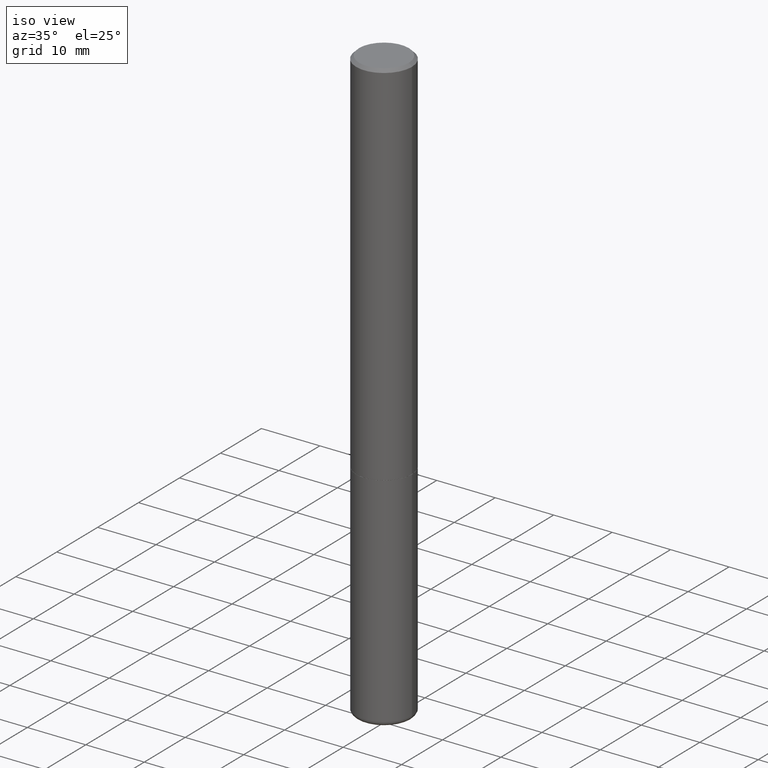
[diagram: clean part render]
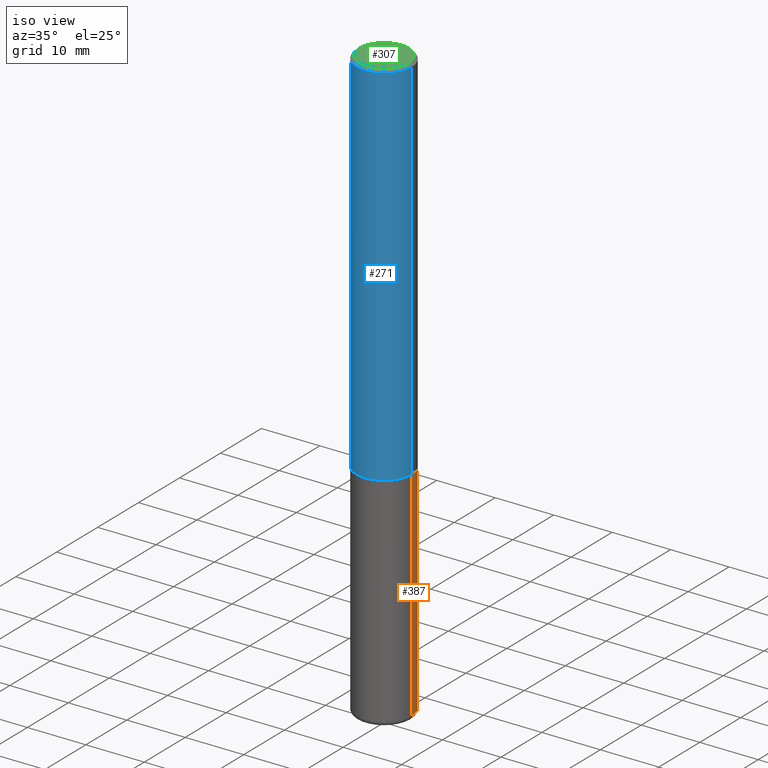
[diagram: same view with three faces highlighted in distinct colors, each labeled with its STEP entity id]
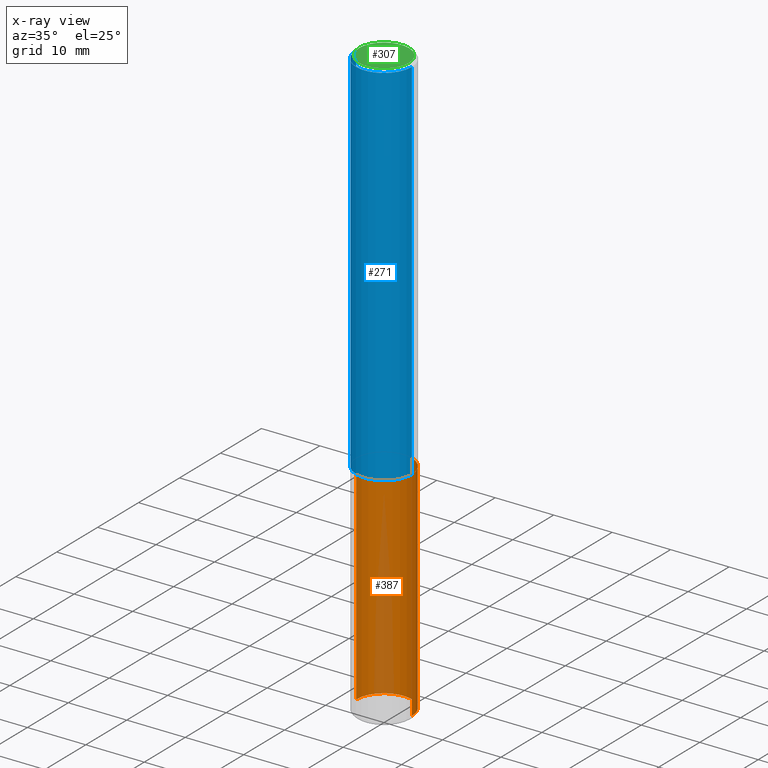
[diagram: x-ray of the same camera — body ghosted, the three highlighted faces saturated]
A machine part, iso view with three faces highlighted in distinct colors.
The next image is the same camera in x-ray (body ghosted, the three faces saturated) — at least one of them is partly hidden behind the body in this view.
Their STEP definitions:

[orange] entity #387 — the highlighted cylindrical surface (edge-blend (fillet) strip) has radius 4.7625 mm, axis along (-0, 0, 1).
#6 = VERTEX_POINT ( 'NONE', #159 ) ;
#20 = VERTEX_POINT ( 'NONE', #261 ) ;
#41 = EDGE_LOOP ( 'NONE', ( #200, #252, #328, #71 ) ) ;
#48 = CARTESIAN_POINT ( 'NONE',  ( -0.1875000000000000278, -9.962674501607386737E-15, -2.500000000000000000 ) ) ;
#52 = DIRECTION ( 'NONE',  ( -2.445468806185136597E-29, 3.491481338843145583E-15, 1.000000000000000000 ) ) ;
#53 = CIRCLE ( 'NONE', #382, 0.1875000000000000278 ) ;
#54 = CARTESIAN_POINT ( 'NONE',  ( 6.113672015462842613E-29, -8.728703347107864943E-15, -2.500000000000000000 ) ) ;
#71 = ORIENTED_EDGE ( 'NONE', *, *, #360, .F. ) ;
#75 = DIRECTION ( 'NONE',  ( -2.445468806185136877E-29, 3.491481338843145188E-15, 1.000000000000000000 ) ) ;
#102 = CARTESIAN_POINT ( 'NONE',  ( -0.1875000000000000278, 1.332267629550188046E-15, -9.223003294227947991E-30 ) ) ;
#122 = CARTESIAN_POINT ( 'NONE',  ( -0.1875000000000000278, -1.252891328565709953E-14, -3.969999999999999307 ) ) ;
#157 = DIRECTION ( 'NONE',  ( 1.000000000000000000, -6.982962677686265922E-15, 4.876176775795935793E-29 ) ) ;
#159 = CARTESIAN_POINT ( 'NONE',  ( 0.1875000000000000278, -1.517048641727346081E-14, -3.969999999999999307 ) ) ;
#160 = CARTESIAN_POINT ( 'NONE',  ( 0.000000000000000000, 0.000000000000000000, 0.000000000000000000 ) ) ;
#164 = VECTOR ( 'NONE', #183, 39.37007874015748143 ) ;
#183 = DIRECTION ( 'NONE',  ( -2.445468806185136877E-29, 3.491481338843145188E-15, 1.000000000000000000 ) ) ;
#185 = DIRECTION ( 'NONE',  ( -2.445468806185136597E-29, 3.491481338843145583E-15, 1.000000000000000000 ) ) ;
#200 = ORIENTED_EDGE ( 'NONE', *, *, #338, .T. ) ;
#210 = EDGE_CURVE ( 'NONE', #20, #233, #53, .T. ) ;
#216 = AXIS2_PLACEMENT_3D ( 'NONE', #226, #52, #399 ) ;
#222 = CYLINDRICAL_SURFACE ( 'NONE', #339, 0.1875000000000000278 ) ;
#226 = CARTESIAN_POINT ( 'NONE',  ( 9.708511160554990630E-29, -1.386118091520728581E-14, -3.969999999999999307 ) ) ;
#233 = VERTEX_POINT ( 'NONE', #48 ) ;
#252 = ORIENTED_EDGE ( 'NONE', *, *, #284, .T. ) ;
#261 = CARTESIAN_POINT ( 'NONE',  ( 0.1875000000000000278, -1.003800884917403995E-14, -2.500000000000000000 ) ) ;
#272 = DIRECTION ( 'NONE',  ( 1.000000000000000000, -6.982962677686266711E-15, 0.000000000000000000 ) ) ;
#284 = EDGE_CURVE ( 'NONE', #430, #233, #402, .T. ) ;
#328 = ORIENTED_EDGE ( 'NONE', *, *, #210, .F. ) ;
#338 = EDGE_CURVE ( 'NONE', #6, #430, #393, .T. ) ;
#339 = AXIS2_PLACEMENT_3D ( 'NONE', #160, #358, #157 ) ;
#358 = DIRECTION ( 'NONE',  ( -2.445468806185136597E-29, 3.491481338843145583E-15, 1.000000000000000000 ) ) ;
#360 = EDGE_CURVE ( 'NONE', #6, #20, #435, .T. ) ;
#364 = CARTESIAN_POINT ( 'NONE',  ( 0.1875000000000000278, -1.309305502066175008E-15, 9.142831454617381013E-30 ) ) ;
#382 = AXIS2_PLACEMENT_3D ( 'NONE', #54, #185, #272 ) ;
#387 = ADVANCED_FACE ( 'NONE', ( #431 ), #222, .T. ) ;
#393 = CIRCLE ( 'NONE', #216, 0.1875000000000000278 ) ;
#399 = DIRECTION ( 'NONE',  ( 1.000000000000000000, -6.982962677686261189E-15, 0.000000000000000000 ) ) ;
#402 = LINE ( 'NONE', #102, #420 ) ;
#420 = VECTOR ( 'NONE', #75, 39.37007874015748143 ) ;
#430 = VERTEX_POINT ( 'NONE', #122 ) ;
#431 = FACE_OUTER_BOUND ( 'NONE', #41, .T. ) ;
#435 = LINE ( 'NONE', #364, #164 ) ;

[blue] entity #271 — the highlighted cylindrical surface (edge-blend (fillet) strip) has radius 4.7625 mm, axis along (-0, 0, 1).
#3 = VECTOR ( 'NONE', #189, 39.37007874015748143 ) ;
#9 = CARTESIAN_POINT ( 'NONE',  ( 0.1874999999999999722, -1.003451736783519694E-14, -2.499000000000000110 ) ) ;
#39 = EDGE_LOOP ( 'NONE', ( #150, #227, #440, #404 ) ) ;
#56 = LINE ( 'NONE', #315, #171 ) ;
#63 = EDGE_CURVE ( 'NONE', #101, #123, #195, .T. ) ;
#64 = CYLINDRICAL_SURFACE ( 'NONE', #126, 0.1874999999999998335 ) ;
#85 = DIRECTION ( 'NONE',  ( 1.000000000000000000, -6.982962677686266711E-15, 4.876176775795935793E-29 ) ) ;
#101 = VERTEX_POINT ( 'NONE', #198 ) ;
#117 = VERTEX_POINT ( 'NONE', #285 ) ;
#123 = VERTEX_POINT ( 'NONE', #353 ) ;
#126 = AXIS2_PLACEMENT_3D ( 'NONE', #427, #322, #85 ) ;
#142 = EDGE_CURVE ( 'NONE', #117, #101, #56, .T. ) ;
#150 = ORIENTED_EDGE ( 'NONE', *, *, #142, .F. ) ;
#156 = FACE_OUTER_BOUND ( 'NONE', #39, .T. ) ;
#171 = VECTOR ( 'NONE', #321, 39.37007874015748143 ) ;
#174 = AXIS2_PLACEMENT_3D ( 'NONE', #373, #340, #206 ) ;
#176 = EDGE_CURVE ( 'NONE', #298, #123, #209, .T. ) ;
#189 = DIRECTION ( 'NONE',  ( -2.445468806185136877E-29, 3.491481338843145188E-15, 1.000000000000000000 ) ) ;
#195 = CIRCLE ( 'NONE', #249, 0.1874999999999996669 ) ;
#198 = CARTESIAN_POINT ( 'NONE',  ( -0.1874999999999996669, 1.239475875289309738E-15, -0.02000000000000007327 ) ) ;
#206 = DIRECTION ( 'NONE',  ( 1.000000000000000000, -6.982962677686269077E-15, 0.000000000000000000 ) ) ;
#209 = LINE ( 'NONE', #245, #3 ) ;
#224 = DIRECTION ( 'NONE',  ( 1.000000000000000000, -6.982962677686267499E-15, 0.000000000000000000 ) ) ;
#227 = ORIENTED_EDGE ( 'NONE', *, *, #303, .T. ) ;
#245 = CARTESIAN_POINT ( 'NONE',  ( 0.1874999999999998335, -1.309305502066173825E-15, 9.142831454617371204E-30 ) ) ;
#249 = AXIS2_PLACEMENT_3D ( 'NONE', #434, #257, #224 ) ;
#257 = DIRECTION ( 'NONE',  ( -2.445468806185136597E-29, 3.491481338843145583E-15, 1.000000000000000000 ) ) ;
#271 = ADVANCED_FACE ( 'NONE', ( #156 ), #64, .T. ) ;
#285 = CARTESIAN_POINT ( 'NONE',  ( -0.1874999999999999722, -3.065253116722752402E-15, -2.499000000000000110 ) ) ;
#298 = VERTEX_POINT ( 'NONE', #9 ) ;
#303 = EDGE_CURVE ( 'NONE', #117, #298, #351, .T. ) ;
#315 = CARTESIAN_POINT ( 'NONE',  ( -0.1874999999999998335, 1.332267629550186665E-15, -9.223003294227939583E-30 ) ) ;
#321 = DIRECTION ( 'NONE',  ( -2.445468806185136877E-29, 3.491481338843145188E-15, 1.000000000000000000 ) ) ;
#322 = DIRECTION ( 'NONE',  ( -2.445468806185136597E-29, 3.491481338843145583E-15, 1.000000000000000000 ) ) ;
#340 = DIRECTION ( 'NONE',  ( -2.445468806185136597E-29, 3.491481338843145583E-15, 1.000000000000000000 ) ) ;
#351 = CIRCLE ( 'NONE', #174, 0.1874999999999999722 ) ;
#353 = CARTESIAN_POINT ( 'NONE',  ( 0.1874999999999996669, -1.356173001359023100E-15, -0.02000000000000007327 ) ) ;
#373 = CARTESIAN_POINT ( 'NONE',  ( 6.111226546656657010E-29, -8.725211865769021935E-15, -2.499000000000000110 ) ) ;
#404 = ORIENTED_EDGE ( 'NONE', *, *, #63, .F. ) ;
#427 = CARTESIAN_POINT ( 'NONE',  ( 0.000000000000000000, 0.000000000000000000, 0.000000000000000000 ) ) ;
#434 = CARTESIAN_POINT ( 'NONE',  ( 4.890937612370290675E-31, -6.982962677686316261E-17, -0.02000000000000007327 ) ) ;
#440 = ORIENTED_EDGE ( 'NONE', *, *, #176, .T. ) ;

[green] entity #307 — the highlighted planar face has unit normal (0, -0, -1).
#4 = CIRCLE ( 'NONE', #79, 0.1674999999999997047 ) ;
#29 = CARTESIAN_POINT ( 'NONE',  ( 6.263108486011318528E-46, -8.942059022282683748E-32, -2.561107494060246767E-17 ) ) ;
#30 = VERTEX_POINT ( 'NONE', #366 ) ;
#35 = EDGE_LOOP ( 'NONE', ( #131, #153 ) ) ;
#38 = DIRECTION ( 'NONE',  ( -2.445468806185136597E-29, 3.491481338843145583E-15, 1.000000000000000000 ) ) ;
#47 = AXIS2_PLACEMENT_3D ( 'NONE', #242, #240, #342 ) ;
#79 = AXIS2_PLACEMENT_3D ( 'NONE', #29, #38, #319 ) ;
#95 = VERTEX_POINT ( 'NONE', #186 ) ;
#131 = ORIENTED_EDGE ( 'NONE', *, *, #341, .T. ) ;
#139 = FACE_OUTER_BOUND ( 'NONE', #35, .T. ) ;
#144 = AXIS2_PLACEMENT_3D ( 'NONE', #259, #250, #395 ) ;
#153 = ORIENTED_EDGE ( 'NONE', *, *, #441, .T. ) ;
#186 = CARTESIAN_POINT ( 'NONE',  ( -0.1674999999999997047, 1.204561061900878878E-15, -2.561107494061076920E-17 ) ) ;
#240 = DIRECTION ( 'NONE',  ( 2.438088387897960049E-29, -3.491481338843145188E-15, -1.000000000000000000 ) ) ;
#242 = CARTESIAN_POINT ( 'NONE',  ( 1.169646248512447623E-15, 0.1674999999999997047, -5.976286617265271623E-16 ) ) ;
#250 = DIRECTION ( 'NONE',  ( -2.445468806185136597E-29, 3.491481338843145583E-15, 1.000000000000000000 ) ) ;
#259 = CARTESIAN_POINT ( 'NONE',  ( 6.263108486011318528E-46, -8.942059022282683748E-32, -2.561107494060246767E-17 ) ) ;
#274 = PLANE ( 'NONE',  #47 ) ;
#307 = ADVANCED_FACE ( 'NONE', ( #139 ), #274, .F. ) ;
#319 = DIRECTION ( 'NONE',  ( 1.000000000000000000, -6.982962677686266711E-15, 4.875370901645449596E-29 ) ) ;
#341 = EDGE_CURVE ( 'NONE', #95, #30, #4, .T. ) ;
#342 = DIRECTION ( 'NONE',  ( -1.000000000000000000, 6.982962677686265922E-15, -4.876176775795935793E-29 ) ) ;
#362 = CIRCLE ( 'NONE', #144, 0.1674999999999997047 ) ;
#366 = CARTESIAN_POINT ( 'NONE',  ( 0.1674999999999997047, -1.252653207992876119E-15, -2.561107494059399666E-17 ) ) ;
#395 = DIRECTION ( 'NONE',  ( 1.000000000000000000, -6.982962677686266711E-15, 4.875370901645449596E-29 ) ) ;
#441 = EDGE_CURVE ( 'NONE', #30, #95, #362, .T. ) ;